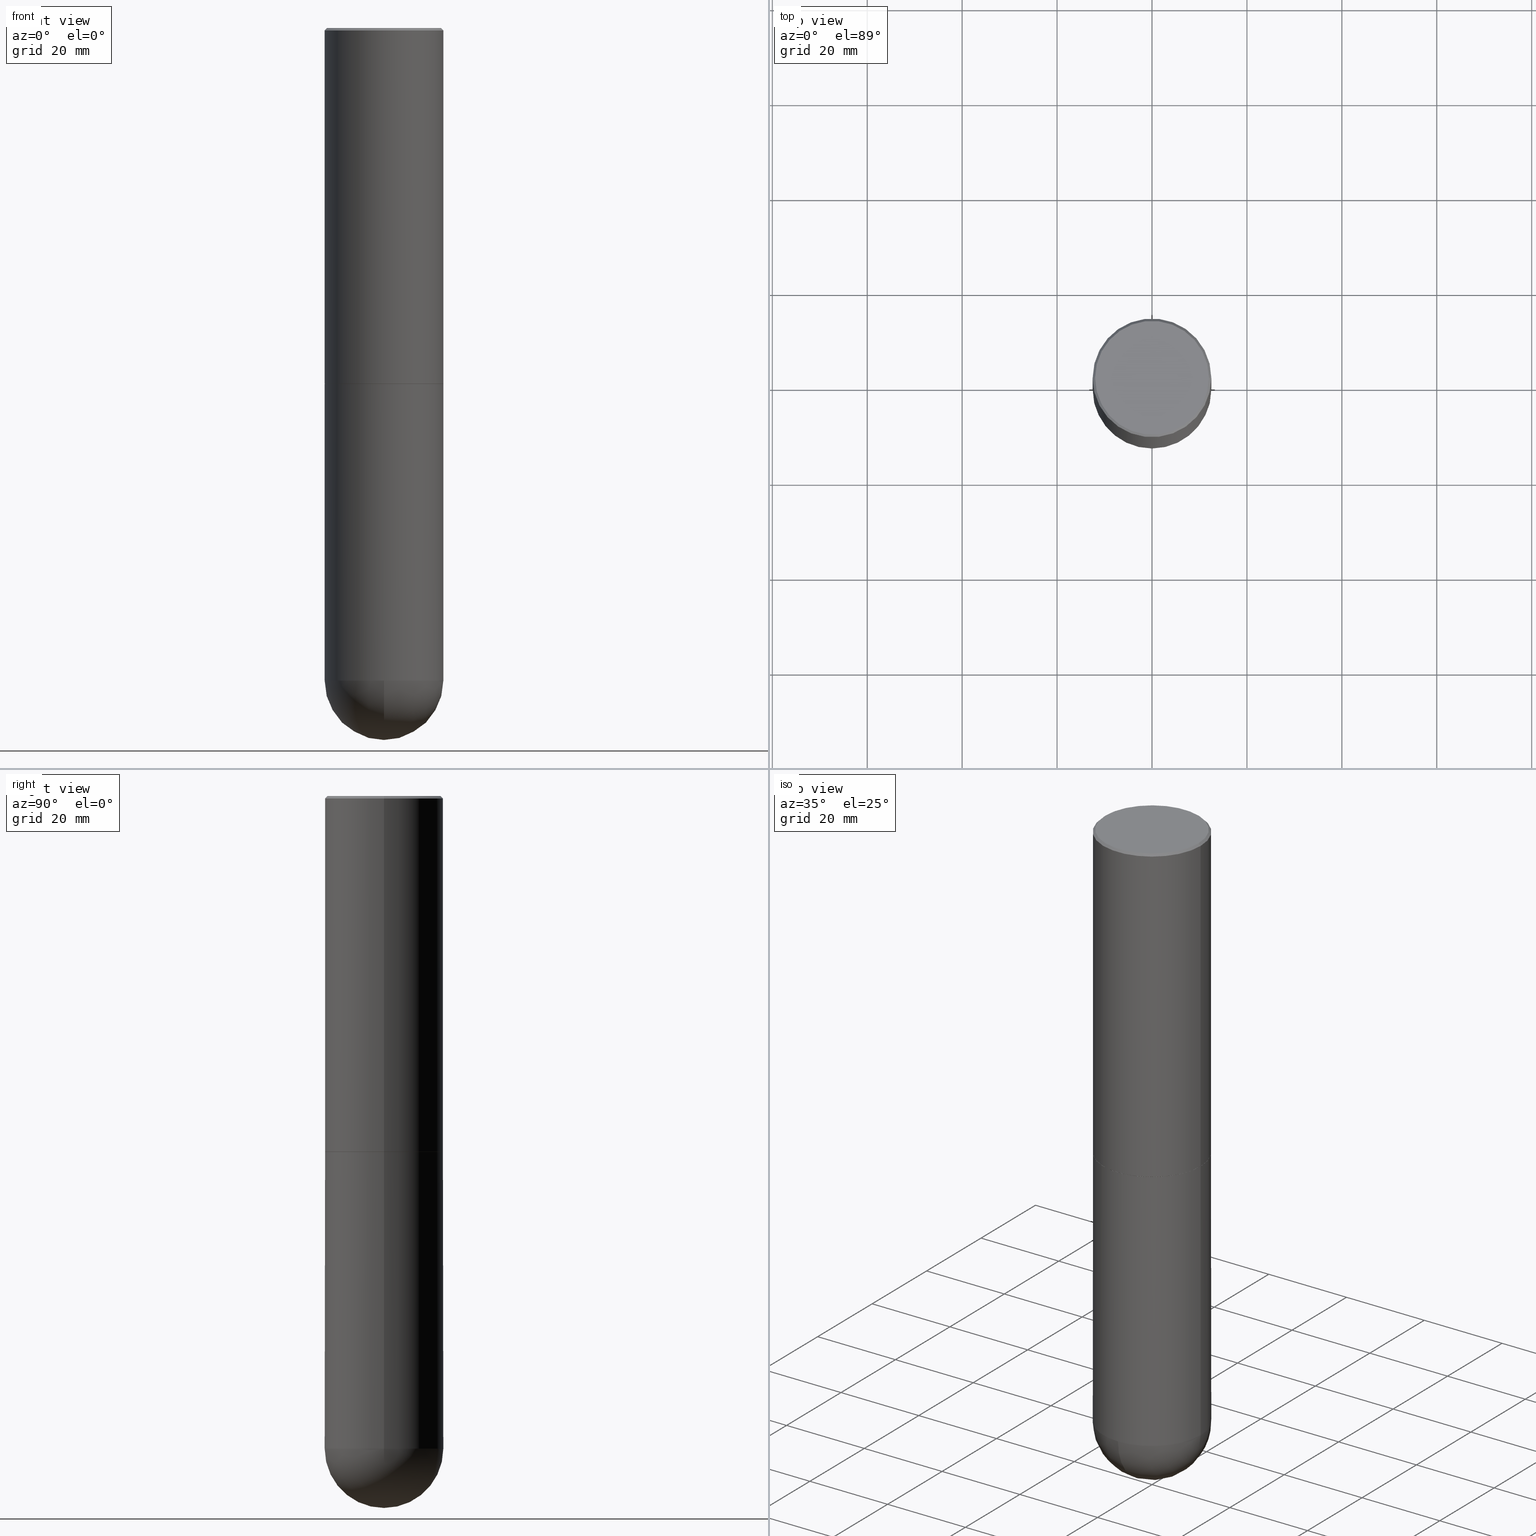
[diagram: canonical four-view strip — front | top / right | iso, engineering-drawing reading convention]
A machine part, canonical four-view strip (front | top / right | iso — engineering-drawing reading convention). The complete STEP part file that produces these views, byte-faithful:
ISO-10303-21;
HEADER;
FILE_DESCRIPTION (( 'STEP AP203' ),
    '1' );
FILE_NAME ('43596.STEP',
    '2024-04-10T11:44:38',
    ( '' ),
    ( '' ),
    'SwSTEP 2.0',
    'SolidWorks 2023',
    '' );
FILE_SCHEMA (( 'CONFIG_CONTROL_DESIGN' ));
ENDSEC;

DATA;
#1 = CARTESIAN_POINT ( 'NONE',  ( 4.890937612370299433E-31, -6.982962677686328587E-17, -0.02000000000000010797 ) ) ;
#2 = ORIENTED_EDGE ( 'NONE', *, *, #407, .T. ) ;
#3 = DIMENSIONAL_EXPONENTS ( 1.000000000000000000, 0.000000000000000000, 0.000000000000000000, 0.000000000000000000, 0.000000000000000000, 0.000000000000000000, 0.000000000000000000 ) ;
#4 = DIRECTION ( 'NONE',  ( 1.000000000000000000, -6.982962677686265922E-15, 4.876176775795935793E-29 ) ) ;
#5 = ORIENTED_EDGE ( 'NONE', *, *, #26, .T. ) ;
#6 = CARTESIAN_POINT ( 'NONE',  ( 0.4921500000000000319, -3.446223716380123138E-15, -0.02000000000000010797 ) ) ;
#7 = EDGE_CURVE ( 'NONE', #326, #382, #82, .T. ) ;
#8 = ORIENTED_EDGE ( 'NONE', *, *, #233, .F. ) ;
#9 = APPROVAL_ROLE ( '' ) ;
#10 = DIRECTION ( 'NONE',  ( -2.445468806185136877E-29, 3.491481338843145188E-15, 1.000000000000000000 ) ) ;
#11 = ORIENTED_EDGE ( 'NONE', *, *, #151, .T. ) ;
#12 = ADVANCED_FACE ( 'NONE', ( #30 ), #193, .T. ) ;
#13 = APPLICATION_PROTOCOL_DEFINITION ( 'international standard', 'config_control_design', 1994, #217 ) ;
#14 = FACE_OUTER_BOUND ( 'NONE', #109, .T. ) ;
#15 = ORIENTED_EDGE ( 'NONE', *, *, #375, .F. ) ;
#16 = PERSON_AND_ORGANIZATION_ROLE ( 'design_owner' ) ;
#17 = APPROVAL_STATUS ( 'not_yet_approved' ) ;
#18 = CYLINDRICAL_SURFACE ( 'NONE', #325, 0.4921500000000001984 ) ;
#19 = ORIENTED_EDGE ( 'NONE', *, *, #238, .T. ) ;
#20 = CARTESIAN_POINT ( 'NONE',  ( 1.290705878404842200E-28, -1.937479287376659043E-14, -5.413349999999999440 ) ) ;
#21 = PRODUCT ( '43596', '43596', '', ( #46 ) ) ;
#22 = AXIS2_PLACEMENT_3D ( 'NONE', #309, #222, #253 ) ;
#23 = DESIGN_CONTEXT ( 'detailed design', #396, 'design' ) ;
#24 = VERTEX_POINT ( 'NONE', #367 ) ;
#25 = ORIENTED_EDGE ( 'NONE', *, *, #330, .F. ) ;
#26 = EDGE_CURVE ( 'NONE', #45, #273, #52, .T. ) ;
#27 = DIRECTION ( 'NONE',  ( 1.000000000000000000, -6.982962677686265922E-15, 4.883557194083112340E-29 ) ) ;
#28 = CC_DESIGN_APPROVAL ( #218, ( #256 ) ) ;
#29 = CALENDAR_DATE ( 2024, 10, 4 ) ;
#30 = FACE_OUTER_BOUND ( 'NONE', #154, .T. ) ;
#31 = AXIS2_PLACEMENT_3D ( 'NONE', #36, #160, #101 ) ;
#32 = DIRECTION ( 'NONE',  ( 1.000000000000000000, -6.982962677686264344E-15, 0.000000000000000000 ) ) ;
#33 = EDGE_CURVE ( 'NONE', #307, #366, #163, .T. ) ;
#34 = EDGE_LOOP ( 'NONE', ( #25, #175, #236, #90 ) ) ;
#35 = LINE ( 'NONE', #234, #224 ) ;
#36 = CARTESIAN_POINT ( 'NONE',  ( 7.220735744022853640E-29, -1.030929694920215659E-14, -2.952700000000000546 ) ) ;
#37 = AXIS2_PLACEMENT_3D ( 'NONE', #226, #166, #370 ) ;
#38 = CARTESIAN_POINT ( 'NONE',  ( 3.436665081823426728E-15, 0.4921499999999808250, -5.413350000000002105 ) ) ;
#39 = CC_DESIGN_PERSON_AND_ORGANIZATION_ASSIGNMENT ( #189, #368, ( #378 ) ) ;
#40 = AXIS2_PLACEMENT_3D ( 'NONE', #284, #64, #84 ) ;
#41 = LINE ( 'NONE', #6, #168 ) ;
#42 = PERSON_AND_ORGANIZATION ( #177, #389 ) ;
#43 = MANIFOLD_SOLID_BREP ( 'Body-Move/Copy2[2]', #279 ) ;
#44 = EDGE_CURVE ( 'NONE', #307, #178, #60, .T. ) ;
#45 = VERTEX_POINT ( 'NONE', #255 ) ;
#46 = MECHANICAL_CONTEXT ( 'NONE', #217, 'mechanical' ) ;
#47 = AXIS2_PLACEMENT_3D ( 'NONE', #329, #156, #274 ) ;
#48 = ORIENTED_EDGE ( 'NONE', *, *, #192, .F. ) ;
#49 = SHAPE_DEFINITION_REPRESENTATION ( #387, #317 ) ;
#50 = ORIENTED_EDGE ( 'NONE', *, *, #33, .F. ) ;
#51 = DIRECTION ( 'NONE',  ( 1.000000000000000000, -6.982962677686264344E-15, 0.000000000000000000 ) ) ;
#52 = CIRCLE ( 'NONE', #98, 0.4921499999999999764 ) ;
#53 = ADVANCED_FACE ( 'NONE', ( #280 ), #286, .T. ) ;
#54 = ORIENTED_EDGE ( 'NONE', *, *, #375, .T. ) ;
#55 = ADVANCED_FACE ( 'NONE', ( #132 ), #155, .F. ) ;
#56 = ORIENTED_EDGE ( 'NONE', *, *, #7, .T. ) ;
#57 = DIRECTION ( 'NONE',  ( 1.000000000000000000, -6.982962677686266711E-15, 4.876176775795935232E-29 ) ) ;
#58 = DIRECTION ( 'NONE',  ( 6.982962677686266711E-15, 1.000000000000000000, -4.440675393541420887E-15 ) ) ;
#59 = CARTESIAN_POINT ( 'NONE',  ( -0.4921499999999999764, -1.110801765337101547E-14, -2.952700000000000102 ) ) ;
#60 = LINE ( 'NONE', #188, #287 ) ;
#61 = CLOSED_SHELL ( 'NONE', ( #134, #259, #53, #230, #341 ) ) ;
#62 = EDGE_CURVE ( 'NONE', #366, #45, #170, .T. ) ;
#63 = CARTESIAN_POINT ( 'NONE',  ( 7.220735744022853640E-29, -1.030929694920215659E-14, -2.952700000000000546 ) ) ;
#64 = DIRECTION ( 'NONE',  ( 2.438088387897960049E-29, -3.491481338843145188E-15, -1.000000000000000000 ) ) ;
#65 = APPROVAL_ROLE ( '' ) ;
#66 = ORIENTED_EDGE ( 'NONE', *, *, #103, .F. ) ;
#67 = FACE_OUTER_BOUND ( 'NONE', #357, .T. ) ;
#68 = LOCAL_TIME ( 7, 44, 38.00000000000000000, #135 ) ;
#69 = CONICAL_SURFACE ( 'NONE', #31, 0.4911499999999999755, 0.7853981633974482790 ) ;
#70 = FACE_OUTER_BOUND ( 'NONE', #199, .T. ) ;
#71 = CALENDAR_DATE ( 2024, 10, 4 ) ;
#72 = CARTESIAN_POINT ( 'NONE',  ( -0.4911499999999999755, -6.814167848168200725E-15, -2.952700000000000546 ) ) ;
#73 = DIRECTION ( 'NONE',  ( -2.445468806185136597E-29, 3.491481338843145583E-15, 1.000000000000000000 ) ) ;
#74 = ORIENTED_EDGE ( 'NONE', *, *, #252, .F. ) ;
#75 = AXIS2_PLACEMENT_3D ( 'NONE', #294, #73, #377 ) ;
#76 = ORIENTED_EDGE ( 'NONE', *, *, #123, .F. ) ;
#77 = APPROVAL_DATE_TIME ( #240, #218 ) ;
#78 = EDGE_CURVE ( 'NONE', #79, #246, #390, .T. ) ;
#79 = VERTEX_POINT ( 'NONE', #157 ) ;
#80 = CC_DESIGN_PERSON_AND_ORGANIZATION_ASSIGNMENT ( #112, #16, ( #21 ) ) ;
#81 = DIRECTION ( 'NONE',  ( 0.7071067811865474617, -2.468850131082256666E-15, 0.7071067811865474617 ) ) ;
#82 = CIRCLE ( 'NONE', #187, 0.4911499999999999755 ) ;
#83 = ORIENTED_EDGE ( 'NONE', *, *, #310, .T. ) ;
#84 = DIRECTION ( 'NONE',  ( -1.000000000000000000, 6.982962677686265922E-15, -4.876176775795935793E-29 ) ) ;
#85 = CARTESIAN_POINT ( 'NONE',  ( 0.000000000000000000, 0.000000000000000000, 0.000000000000000000 ) ) ;
#86 = DIRECTION ( 'NONE',  ( -1.000000000000000000, 6.982962677686265922E-15, 0.000000000000000000 ) ) ;
#87 = CARTESIAN_POINT ( 'NONE',  ( 7.220735744022853640E-29, -1.030929694920215659E-14, -2.952700000000000546 ) ) ;
#88 = CIRCLE ( 'NONE', #75, 0.4921500000000003094 ) ;
#89 = VERTEX_POINT ( 'NONE', #283 ) ;
#90 = ORIENTED_EDGE ( 'NONE', *, *, #282, .T. ) ;
#91 = CARTESIAN_POINT ( 'NONE',  ( 1.323817856196230713E-28, -1.890061050562653856E-14, -5.413349999999999440 ) ) ;
#92 = DIRECTION ( 'NONE',  ( -2.445468806185136877E-29, 3.491481338843145188E-15, 1.000000000000000000 ) ) ;
#93 = DIRECTION ( 'NONE',  ( -2.445468806185136877E-29, 3.491481338843145188E-15, 1.000000000000000000 ) ) ;
#94 = DIRECTION ( 'NONE',  ( 1.000000000000000000, -6.982962677686265922E-15, 4.876176775795935793E-29 ) ) ;
#95 =( NAMED_UNIT ( * ) PLANE_ANGLE_UNIT ( ) SI_UNIT ( $, .RADIAN. ) );
#96 = ORIENTED_EDGE ( 'NONE', *, *, #401, .F. ) ;
#97 = COORDINATED_UNIVERSAL_TIME_OFFSET ( 5, 0, .BEHIND. ) ;
#98 = AXIS2_PLACEMENT_3D ( 'NONE', #249, #393, #184 ) ;
#99 = DIRECTION ( 'NONE',  ( 2.445468806185136597E-29, -3.491481338843145583E-15, -1.000000000000000000 ) ) ;
#100 = DATE_AND_TIME ( #29, #68 ) ;
#101 = DIRECTION ( 'NONE',  ( 1.000000000000000000, -6.982962677686264344E-15, 0.000000000000000000 ) ) ;
#102 = PERSON_AND_ORGANIZATION ( #177, #389 ) ;
#103 = EDGE_CURVE ( 'NONE', #326, #198, #191, .T. ) ;
#104 = AXIS2_PLACEMENT_3D ( 'NONE', #356, #203, #353 ) ;
#105 = AXIS2_PLACEMENT_3D ( 'NONE', #87, #308, #32 ) ;
#106 = CARTESIAN_POINT ( 'NONE',  ( 1.290705878404842200E-28, -1.937479287376659043E-14, -5.413349999999999440 ) ) ;
#107 = ADVANCED_FACE ( 'NONE', ( #315 ), #69, .T. ) ;
#108 = CONICAL_SURFACE ( 'NONE', #105, 0.4911499999999999755, 0.7853981633974482790 ) ;
#109 = EDGE_LOOP ( 'NONE', ( #298, #397, #243, #365 ) ) ;
#110 = PRODUCT_DEFINITION ( 'UNKNOWN', '', #256, #23 ) ;
#111 = ORIENTED_EDGE ( 'NONE', *, *, #297, .F. ) ;
#112 = PERSON_AND_ORGANIZATION ( #177, #389 ) ;
#113 = AXIS2_PLACEMENT_3D ( 'NONE', #261, #136, #258 ) ;
#114 = AXIS2_PLACEMENT_3D ( 'NONE', #312, #121, #399 ) ;
#115 = ORIENTED_EDGE ( 'NONE', *, *, #44, .F. ) ;
#116 = DIRECTION ( 'NONE',  ( 2.445468806185136597E-29, -3.491481338843145583E-15, -1.000000000000000000 ) ) ;
#117 = APPROVAL_DATE_TIME ( #333, #137 ) ;
#118 = ORIENTED_EDGE ( 'NONE', *, *, #26, .F. ) ;
#119 = ADVANCED_FACE ( 'NONE', ( #228 ), #342, .F. ) ;
#120 = ORIENTED_EDGE ( 'NONE', *, *, #151, .F. ) ;
#121 = DIRECTION ( 'NONE',  ( -2.445468806185136597E-29, 3.491481338843145583E-15, 1.000000000000000000 ) ) ;
#122 = DIRECTION ( 'NONE',  ( -1.000000000000000000, 6.982962677686265922E-15, -4.876176775795935793E-29 ) ) ;
#123 = EDGE_CURVE ( 'NONE', #273, #307, #412, .T. ) ;
#124 = CC_DESIGN_SECURITY_CLASSIFICATION ( #378, ( #256 ) ) ;
#125 = CARTESIAN_POINT ( 'NONE',  ( -0.4921500000000001984, 3.496936074043334475E-15, -2.420853904668952630E-29 ) ) ;
#126 = ORIENTED_EDGE ( 'NONE', *, *, #318, .T. ) ;
#127 = LINE ( 'NONE', #398, #301 ) ;
#128 = CARTESIAN_POINT ( 'NONE',  ( -3.235939384439181382E-45, 4.620063828179386567E-31, 1.323238871931127589E-16 ) ) ;
#129 = ORIENTED_EDGE ( 'NONE', *, *, #238, .F. ) ;
#130 = CARTESIAN_POINT ( 'NONE',  ( 0.4911499999999999755, -1.373897906834776478E-14, -2.952700000000000546 ) ) ;
#131 = DIRECTION ( 'NONE',  ( -7.105427357601001070E-15, -1.000000000000000000, 0.000000000000000000 ) ) ;
#132 = FACE_OUTER_BOUND ( 'NONE', #352, .T. ) ;
#133 = CIRCLE ( 'NONE', #244, 0.4921500000000000874 ) ;
#134 = ADVANCED_FACE ( 'NONE', ( #335 ), #277, .T. ) ;
#135 = COORDINATED_UNIVERSAL_TIME_OFFSET ( 5, 0, .BEHIND. ) ;
#136 = DIRECTION ( 'NONE',  ( -2.445468806185136597E-29, 3.491481338843145583E-15, 1.000000000000000000 ) ) ;
#137 = APPROVAL ( #359, 'UNSPECIFIED' ) ;
#138 = CALENDAR_DATE ( 2024, 10, 4 ) ;
#139 = CARTESIAN_POINT ( 'NONE',  ( 7.218290275216666916E-29, -1.030580546786331359E-14, -2.951700000000000212 ) ) ;
#140 = DIRECTION ( 'NONE',  ( -1.000000000000000000, 6.982962677686265922E-15, 0.000000000000000000 ) ) ;
#141 = VERTEX_POINT ( 'NONE', #392 ) ;
#142 = EDGE_LOOP ( 'NONE', ( #264, #248 ) ) ;
#143 = FACE_OUTER_BOUND ( 'NONE', #34, .T. ) ;
#144 = CONICAL_SURFACE ( 'NONE', #346, 0.4921500000000000319, 0.7853981633974456145 ) ;
#145 = VERTEX_POINT ( 'NONE', #304 ) ;
#146 = CALENDAR_DATE ( 2024, 10, 4 ) ;
#147 = FACE_OUTER_BOUND ( 'NONE', #313, .T. ) ;
#148 = VECTOR ( 'NONE', #92, 39.37007874015748143 ) ;
#149 = ORIENTED_EDGE ( 'NONE', *, *, #241, .F. ) ;
#150 = CARTESIAN_POINT ( 'NONE',  ( 7.220735744022853640E-29, -1.030929694920215659E-14, -2.952700000000000546 ) ) ;
#151 = EDGE_CURVE ( 'NONE', #145, #273, #133, .T. ) ;
#152 = LOCAL_TIME ( 7, 44, 38.00000000000000000, #411 ) ;
#153 = AXIS2_PLACEMENT_3D ( 'NONE', #194, #99, #140 ) ;
#154 = EDGE_LOOP ( 'NONE', ( #8, #54, #126, #355 ) ) ;
#155 = PLANE ( 'NONE',  #293 ) ;
#156 = DIRECTION ( 'NONE',  ( -2.445468806185136597E-29, 3.491481338843145583E-15, 1.000000000000000000 ) ) ;
#157 = CARTESIAN_POINT ( 'NONE',  ( 0.4721499999999999031, -3.342703923013974974E-15, 1.323238871931359563E-16 ) ) ;
#158 = CARTESIAN_POINT ( 'NONE',  ( -0.4921500000000003094, -1.690881473276752982E-15, -2.951700000000000212 ) ) ;
#159 = APPROVAL_DATE_TIME ( #231, #269 ) ;
#160 = DIRECTION ( 'NONE',  ( -2.445468806185136597E-29, 3.491481338843145583E-15, 1.000000000000000000 ) ) ;
#161 = DIRECTION ( 'NONE',  ( -2.445468806185136597E-29, 3.491481338843145583E-15, 1.000000000000000000 ) ) ;
#162 = DATE_TIME_ROLE ( 'classification_date' ) ;
#163 = CIRCLE ( 'NONE', #22, 0.4921499999999999764 ) ;
#164 = PLANE ( 'NONE',  #40 ) ;
#165 = DIRECTION ( 'NONE',  ( -2.445468806185136877E-29, 3.491481338843145188E-15, 1.000000000000000000 ) ) ;
#166 = DIRECTION ( 'NONE',  ( -2.445468806185136597E-29, 3.491481338843145583E-15, 1.000000000000000000 ) ) ;
#167 = EDGE_CURVE ( 'NONE', #246, #79, #173, .T. ) ;
#168 = VECTOR ( 'NONE', #347, 39.37007874015748854 ) ;
#169 = DIRECTION ( 'NONE',  ( -0.7071067811865454633, 2.468850131082235761E-15, -0.7071067811865493491 ) ) ;
#170 = CIRCLE ( 'NONE', #114, 0.4921499999999999764 ) ;
#171 = DIRECTION ( 'NONE',  ( -2.445468806185136597E-29, 3.491481338843145583E-15, 1.000000000000000000 ) ) ;
#172 = PERSON_AND_ORGANIZATION_ROLE ( 'creator' ) ;
#173 = CIRCLE ( 'NONE', #47, 0.4721499999999999031 ) ;
#174 = SECURITY_CLASSIFICATION_LEVEL ( 'unclassified' ) ;
#175 = ORIENTED_EDGE ( 'NONE', *, *, #167, .F. ) ;
#176 = COORDINATED_UNIVERSAL_TIME_OFFSET ( 5, 0, .BEHIND. ) ;
#177 = PERSON ( 'UNSPECIFIED', 'UNSPECIFIED', 'UNSPECIFIED', ('UNSPECIFIED'), ('UNSPECIFIED'), ('UNSPECIFIED') ) ;
#178 = VERTEX_POINT ( 'NONE', #59 ) ;
#179 = LINE ( 'NONE', #306, #223 ) ;
#180 = AXIS2_PLACEMENT_3D ( 'NONE', #402, #278, #58 ) ;
#181 = DIRECTION ( 'NONE',  ( 2.438088387897960049E-29, -3.491481338843145188E-15, -1.000000000000000000 ) ) ;
#182 = MANIFOLD_SOLID_BREP ( 'Body-Move/Copy2[1]', #61 ) ;
#183 = ADVANCED_FACE ( 'NONE', ( #147 ), #108, .T. ) ;
#184 = DIRECTION ( 'NONE',  ( 1.000000000000000000, -6.982962677686265922E-15, 0.000000000000000000 ) ) ;
#185 = CARTESIAN_POINT ( 'NONE',  ( 0.000000000000000000, 0.000000000000000000, 0.000000000000000000 ) ) ;
#186 = DIRECTION ( 'NONE',  ( -2.438088387897960049E-29, 3.491481338843145188E-15, 1.000000000000000000 ) ) ;
#187 = AXIS2_PLACEMENT_3D ( 'NONE', #150, #220, #216 ) ;
#188 = CARTESIAN_POINT ( 'NONE',  ( -0.4921499999999999764, 3.496936074043332897E-15, -2.420853904668951509E-29 ) ) ;
#189 = PERSON_AND_ORGANIZATION ( #177, #389 ) ;
#190 = CARTESIAN_POINT ( 'NONE',  ( 1.290705878404842200E-28, -1.937479287376659043E-14, -5.413349999999999440 ) ) ;
#191 = LINE ( 'NONE', #369, #237 ) ;
#192 = EDGE_CURVE ( 'NONE', #45, #141, #35, .T. ) ;
#193 = CYLINDRICAL_SURFACE ( 'NONE', #395, 0.4921500000000001984 ) ;
#194 = CARTESIAN_POINT ( 'NONE',  ( 4.890937612370299433E-31, -6.982962677686328587E-17, -0.02000000000000010797 ) ) ;
#195 = CIRCLE ( 'NONE', #113, 0.4921500000000000319 ) ;
#196 = DIRECTION ( 'NONE',  ( -1.000000000000000000, 6.982962677686266711E-15, -4.883557194083112901E-29 ) ) ;
#197 = AXIS2_PLACEMENT_3D ( 'NONE', #221, #181, #122 ) ;
#198 = VERTEX_POINT ( 'NONE', #158 ) ;
#199 = EDGE_LOOP ( 'NONE', ( #120, #19, #50, #76 ) ) ;
#200 = AXIS2_PLACEMENT_3D ( 'NONE', #190, #219, #131 ) ;
#201 = EDGE_CURVE ( 'NONE', #141, #178, #213, .T. ) ;
#202 = ORIENTED_EDGE ( 'NONE', *, *, #310, .F. ) ;
#203 = DIRECTION ( 'NONE',  ( 0.000000000000000000, 0.000000000000000000, 1.000000000000000000 ) ) ;
#204 = PERSON_AND_ORGANIZATION_ROLE ( 'design_supplier' ) ;
#205 =( GEOMETRIC_REPRESENTATION_CONTEXT ( 3 ) GLOBAL_UNCERTAINTY_ASSIGNED_CONTEXT ( ( #305 ) ) GLOBAL_UNIT_ASSIGNED_CONTEXT ( ( #408, #95, #299 ) ) REPRESENTATION_CONTEXT ( 'NONE', 'WORKASPACE' ) );
#206 = ORIENTED_EDGE ( 'NONE', *, *, #330, .T. ) ;
#207 = LINE ( 'NONE', #125, #148 ) ;
#208 = CARTESIAN_POINT ( 'NONE',  ( 7.220735744022853640E-29, -1.030929694920215659E-14, -2.952700000000000546 ) ) ;
#209 = DIRECTION ( 'NONE',  ( -2.445468806185136597E-29, 3.491481338843145583E-15, 1.000000000000000000 ) ) ;
#210 = CIRCLE ( 'NONE', #37, 0.4921499999999999764 ) ;
#211 = DIRECTION ( 'NONE',  ( -2.445468806185136597E-29, 3.491481338843145583E-15, 1.000000000000000000 ) ) ;
#212 = CALENDAR_DATE ( 2024, 10, 4 ) ;
#213 = CIRCLE ( 'NONE', #372, 0.4921499999999999764 ) ;
#214 = ADVANCED_FACE ( 'NONE', ( #67 ), #321, .T. ) ;
#215 = CARTESIAN_POINT ( 'NONE',  ( -3.496936074043201946E-15, -0.4921500000000192387, -5.413349999999997664 ) ) ;
#216 = DIRECTION ( 'NONE',  ( 1.000000000000000000, -6.982962677686264344E-15, 0.000000000000000000 ) ) ;
#217 = APPLICATION_CONTEXT ( 'configuration controlled 3d designs of mechanical parts and assemblies' ) ;
#218 = APPROVAL ( #17, 'UNSPECIFIED' ) ;
#219 = DIRECTION ( 'NONE',  ( -1.000000000000000000, 7.105427357601001070E-15, -4.926315508542082329E-29 ) ) ;
#220 = DIRECTION ( 'NONE',  ( -2.445468806185136597E-29, 3.491481338843145583E-15, 1.000000000000000000 ) ) ;
#221 = CARTESIAN_POINT ( 'NONE',  ( 3.297005828269569575E-15, 0.4721499999999999031, -1.582340970538234485E-15 ) ) ;
#222 = DIRECTION ( 'NONE',  ( -2.445468806185136597E-29, 3.491481338843145583E-15, 1.000000000000000000 ) ) ;
#223 = VECTOR ( 'NONE', #10, 39.37007874015748143 ) ;
#224 = VECTOR ( 'NONE', #165, 39.37007874015748143 ) ;
#225 = EDGE_LOOP ( 'NONE', ( #115, #334, #263, #296, #96 ) ) ;
#226 = CARTESIAN_POINT ( 'NONE',  ( 7.220735744022852519E-29, -1.030929694920215502E-14, -2.952700000000000102 ) ) ;
#227 = PERSON_AND_ORGANIZATION ( #177, #389 ) ;
#228 = FACE_OUTER_BOUND ( 'NONE', #247, .T. ) ;
#229 = CARTESIAN_POINT ( 'NONE',  ( 7.220735744022852519E-29, -1.030929694920215502E-14, -2.952700000000000102 ) ) ;
#230 = ADVANCED_FACE ( 'NONE', ( #381 ), #164, .F. ) ;
#231 = DATE_AND_TIME ( #71, #152 ) ;
#232 = LOCAL_TIME ( 7, 44, 38.00000000000000000, #176 ) ;
#233 = EDGE_CURVE ( 'NONE', #198, #89, #207, .T. ) ;
#234 = CARTESIAN_POINT ( 'NONE',  ( 0.4921499999999999764, -3.436665081823295777E-15, 2.399810400207969603E-29 ) ) ;
#235 = SPHERICAL_SURFACE ( 'NONE', #351, 0.4921500000000000874 ) ;
#236 = ORIENTED_EDGE ( 'NONE', *, *, #241, .T. ) ;
#237 = VECTOR ( 'NONE', #257, 39.37007874015748854 ) ;
#238 = EDGE_CURVE ( 'NONE', #145, #366, #266, .T. ) ;
#239 = EDGE_LOOP ( 'NONE', ( #66, #56, #275, #15 ) ) ;
#240 = DATE_AND_TIME ( #146, #232 ) ;
#241 = EDGE_CURVE ( 'NONE', #246, #89, #127, .T. ) ;
#242 = DIRECTION ( 'NONE',  ( 1.000000000000000000, -6.982962677686265922E-15, 0.000000000000000000 ) ) ;
#243 = ORIENTED_EDGE ( 'NONE', *, *, #407, .F. ) ;
#244 = AXIS2_PLACEMENT_3D ( 'NONE', #20, #27, #358 ) ;
#245 = ORIENTED_EDGE ( 'NONE', *, *, #167, .T. ) ;
#246 = VERTEX_POINT ( 'NONE', #344 ) ;
#247 = EDGE_LOOP ( 'NONE', ( #245, #322 ) ) ;
#248 = ORIENTED_EDGE ( 'NONE', *, *, #401, .T. ) ;
#249 = CARTESIAN_POINT ( 'NONE',  ( 1.323817856196230713E-28, -1.890061050562653856E-14, -5.413349999999999440 ) ) ;
#250 = APPROVAL_PERSON_ORGANIZATION ( #270, #218, #9 ) ;
#251 = DIRECTION ( 'NONE',  ( 1.000000000000000000, -6.982962677686265922E-15, 0.000000000000000000 ) ) ;
#252 = EDGE_CURVE ( 'NONE', #24, #198, #88, .T. ) ;
#253 = DIRECTION ( 'NONE',  ( 1.000000000000000000, -6.982962677686265922E-15, 0.000000000000000000 ) ) ;
#254 = CARTESIAN_POINT ( 'NONE',  ( 0.000000000000000000, 0.000000000000000000, 0.000000000000000000 ) ) ;
#255 = CARTESIAN_POINT ( 'NONE',  ( 0.4921499999999999764, -1.804161880923764651E-14, -5.413349999999999440 ) ) ;
#256 = PRODUCT_DEFINITION_FORMATION_WITH_SPECIFIED_SOURCE ( 'ANY', '', #21, .NOT_KNOWN. ) ;
#257 = DIRECTION ( 'NONE',  ( -0.7071067811865474617, 7.493145998870352582E-15, 0.7071067811865474617 ) ) ;
#258 = DIRECTION ( 'NONE',  ( 1.000000000000000000, -6.982962677686265922E-15, 0.000000000000000000 ) ) ;
#259 = ADVANCED_FACE ( 'NONE', ( #70 ), #235, .T. ) ;
#260 = DATE_AND_TIME ( #138, #394 ) ;
#261 = CARTESIAN_POINT ( 'NONE',  ( 4.890937612370299433E-31, -6.982962677686328587E-17, -0.02000000000000010797 ) ) ;
#262 = FACE_OUTER_BOUND ( 'NONE', #225, .T. ) ;
#263 = ORIENTED_EDGE ( 'NONE', *, *, #62, .T. ) ;
#264 = ORIENTED_EDGE ( 'NONE', *, *, #201, .T. ) ;
#265 = EDGE_LOOP ( 'NONE', ( #129, #11, #118, #336 ) ) ;
#266 = CIRCLE ( 'NONE', #200, 0.4921500000000000874 ) ;
#267 = PERSON_AND_ORGANIZATION ( #177, #389 ) ;
#268 = LINE ( 'NONE', #386, #300 ) ;
#269 = APPROVAL ( #404, 'UNSPECIFIED' ) ;
#270 = PERSON_AND_ORGANIZATION ( #177, #389 ) ;
#271 = LOCAL_TIME ( 7, 44, 38.00000000000000000, #97 ) ;
#272 = ORIENTED_EDGE ( 'NONE', *, *, #78, .F. ) ;
#273 = VERTEX_POINT ( 'NONE', #38 ) ;
#274 = DIRECTION ( 'NONE',  ( 1.000000000000000000, -6.982962677686266711E-15, 4.875605319575679544E-29 ) ) ;
#275 = ORIENTED_EDGE ( 'NONE', *, *, #297, .T. ) ;
#276 = DIRECTION ( 'NONE',  ( 1.000000000000000000, -6.982962677686265922E-15, 4.876176775795935793E-29 ) ) ;
#277 = CYLINDRICAL_SURFACE ( 'NONE', #288, 0.4921499999999999764 ) ;
#278 = DIRECTION ( 'NONE',  ( -1.000000000000000000, 6.982962677686266711E-15, -4.883557194083112901E-29 ) ) ;
#279 = CLOSED_SHELL ( 'NONE', ( #183, #302, #214, #348, #12, #107, #55, #119 ) ) ;
#280 = FACE_OUTER_BOUND ( 'NONE', #265, .T. ) ;
#281 = APPROVAL_ROLE ( '' ) ;
#282 = EDGE_CURVE ( 'NONE', #89, #303, #363, .T. ) ;
#283 = CARTESIAN_POINT ( 'NONE',  ( -0.4921500000000000319, 3.366835455046432873E-15, -0.02000000000000010797 ) ) ;
#284 = CARTESIAN_POINT ( 'NONE',  ( 3.436665081823367957E-15, 0.4921499999999896513, -2.952700000000001435 ) ) ;
#285 = PERSON_AND_ORGANIZATION_ROLE ( 'creator' ) ;
#286 = SPHERICAL_SURFACE ( 'NONE', #180, 0.4921500000000000874 ) ;
#287 = VECTOR ( 'NONE', #93, 39.37007874015748143 ) ;
#288 = AXIS2_PLACEMENT_3D ( 'NONE', #185, #338, #94 ) ;
#289 = DIRECTION ( 'NONE',  ( 6.982962677686266711E-15, 1.000000000000000000, -4.440675393541420887E-15 ) ) ;
#290 = CC_DESIGN_DATE_AND_TIME_ASSIGNMENT ( #260, #374, ( #110 ) ) ;
#291 = DIRECTION ( 'NONE',  ( -2.445468806185136597E-29, 3.491481338843145583E-15, 1.000000000000000000 ) ) ;
#292 = AXIS2_PLACEMENT_3D ( 'NONE', #139, #161, #406 ) ;
#293 = AXIS2_PLACEMENT_3D ( 'NONE', #63, #186, #276 ) ;
#294 = CARTESIAN_POINT ( 'NONE',  ( 7.218290275216666916E-29, -1.030580546786331359E-14, -2.951700000000000212 ) ) ;
#295 = DIRECTION ( 'NONE',  ( -2.445468806185136597E-29, 3.491481338843145583E-15, 1.000000000000000000 ) ) ;
#296 = ORIENTED_EDGE ( 'NONE', *, *, #192, .T. ) ;
#297 = EDGE_CURVE ( 'NONE', #382, #24, #268, .T. ) ;
#298 = ORIENTED_EDGE ( 'NONE', *, *, #252, .T. ) ;
#299 =( NAMED_UNIT ( * ) SI_UNIT ( $, .STERADIAN. ) SOLID_ANGLE_UNIT ( ) );
#300 = VECTOR ( 'NONE', #81, 39.37007874015748854 ) ;
#301 = VECTOR ( 'NONE', #169, 39.37007874015748854 ) ;
#302 = ADVANCED_FACE ( 'NONE', ( #14 ), #18, .T. ) ;
#303 = VERTEX_POINT ( 'NONE', #376 ) ;
#304 = CARTESIAN_POINT ( 'NONE',  ( 1.413163976147341948E-28, -2.106298991856822883E-14, -5.905499999999999972 ) ) ;
#305 = UNCERTAINTY_MEASURE_WITH_UNIT (LENGTH_MEASURE( 1.000000000000000082E-05 ), #408, 'distance_accuracy_value', 'NONE');
#306 = CARTESIAN_POINT ( 'NONE',  ( 0.4921500000000001984, -3.436665081823297354E-15, 2.399810400207970443E-29 ) ) ;
#307 = VERTEX_POINT ( 'NONE', #388 ) ;
#308 = DIRECTION ( 'NONE',  ( -2.445468806185136597E-29, 3.491481338843145583E-15, 1.000000000000000000 ) ) ;
#309 = CARTESIAN_POINT ( 'NONE',  ( 1.323817856196230713E-28, -1.890061050562653856E-14, -5.413349999999999440 ) ) ;
#310 = EDGE_CURVE ( 'NONE', #382, #326, #316, .T. ) ;
#311 = ORIENTED_EDGE ( 'NONE', *, *, #201, .F. ) ;
#312 = CARTESIAN_POINT ( 'NONE',  ( 1.323817856196230713E-28, -1.890061050562653856E-14, -5.413349999999999440 ) ) ;
#313 = EDGE_LOOP ( 'NONE', ( #83, #391, #74, #111 ) ) ;
#314 = DIRECTION ( 'NONE',  ( 1.000000000000000000, -6.982962677686266711E-15, 4.875605319575679544E-29 ) ) ;
#315 = FACE_OUTER_BOUND ( 'NONE', #239, .T. ) ;
#316 = CIRCLE ( 'NONE', #371, 0.4911499999999999755 ) ;
#317 = ADVANCED_BREP_SHAPE_REPRESENTATION ( '43596', ( #182, #43, #104 ), #205 ) ;
#318 = EDGE_CURVE ( 'NONE', #24, #303, #179, .T. ) ;
#319 = CC_DESIGN_APPROVAL ( #269, ( #110 ) ) ;
#320 = CARTESIAN_POINT ( 'NONE',  ( 0.000000000000000000, 0.000000000000000000, 0.000000000000000000 ) ) ;
#321 = CONICAL_SURFACE ( 'NONE', #153, 0.4921500000000000319, 0.7853981633974456145 ) ;
#322 = ORIENTED_EDGE ( 'NONE', *, *, #78, .T. ) ;
#323 = ORIENTED_EDGE ( 'NONE', *, *, #44, .T. ) ;
#324 = CC_DESIGN_PERSON_AND_ORGANIZATION_ASSIGNMENT ( #42, #172, ( #256 ) ) ;
#325 = AXIS2_PLACEMENT_3D ( 'NONE', #85, #209, #328 ) ;
#326 = VERTEX_POINT ( 'NONE', #72 ) ;
#327 = DIRECTION ( 'NONE',  ( -2.445468806185136597E-29, 3.491481338843145583E-15, 1.000000000000000000 ) ) ;
#328 = DIRECTION ( 'NONE',  ( 1.000000000000000000, -6.982962677686266711E-15, 4.876176775795935232E-29 ) ) ;
#329 = CARTESIAN_POINT ( 'NONE',  ( -3.235939384439181382E-45, 4.620063828179386567E-31, 1.323238871931127589E-16 ) ) ;
#330 = EDGE_CURVE ( 'NONE', #79, #303, #41, .T. ) ;
#331 = APPROVAL_PERSON_ORGANIZATION ( #405, #137, #281 ) ;
#332 = ORIENTED_EDGE ( 'NONE', *, *, #7, .F. ) ;
#333 = DATE_AND_TIME ( #212, #271 ) ;
#334 = ORIENTED_EDGE ( 'NONE', *, *, #33, .T. ) ;
#335 = FACE_OUTER_BOUND ( 'NONE', #361, .T. ) ;
#336 = ORIENTED_EDGE ( 'NONE', *, *, #62, .F. ) ;
#337 = PRODUCT_RELATED_PRODUCT_CATEGORY ( 'detail', '', ( #21 ) ) ;
#338 = DIRECTION ( 'NONE',  ( -2.445468806185136597E-29, 3.491481338843145583E-15, 1.000000000000000000 ) ) ;
#339 = DIRECTION ( 'NONE',  ( -2.445468806185136597E-29, 3.491481338843145583E-15, 1.000000000000000000 ) ) ;
#340 = ORIENTED_EDGE ( 'NONE', *, *, #123, .T. ) ;
#341 = ADVANCED_FACE ( 'NONE', ( #262 ), #349, .T. ) ;
#342 = PLANE ( 'NONE',  #197 ) ;
#343 = DIRECTION ( 'NONE',  ( 1.000000000000000000, -6.982962677686265922E-15, 0.000000000000000000 ) ) ;
#344 = CARTESIAN_POINT ( 'NONE',  ( -0.4721499999999999031, 3.331920641658001618E-15, 1.323238871930895614E-16 ) ) ;
#345 = LENGTH_MEASURE_WITH_UNIT ( LENGTH_MEASURE( 0.02539999999999999897 ), #373 );
#346 = AXIS2_PLACEMENT_3D ( 'NONE', #384, #116, #86 ) ;
#347 = DIRECTION ( 'NONE',  ( 0.7071067811865454633, -7.319954787623246579E-15, -0.7071067811865493491 ) ) ;
#348 = ADVANCED_FACE ( 'NONE', ( #143 ), #144, .T. ) ;
#349 = CYLINDRICAL_SURFACE ( 'NONE', #383, 0.4921499999999999764 ) ;
#350 = CC_DESIGN_APPROVAL ( #137, ( #378 ) ) ;
#351 = AXIS2_PLACEMENT_3D ( 'NONE', #106, #196, #289 ) ;
#352 = EDGE_LOOP ( 'NONE', ( #202, #332 ) ) ;
#353 = DIRECTION ( 'NONE',  ( 1.000000000000000000, 0.000000000000000000, 0.000000000000000000 ) ) ;
#354 = CC_DESIGN_PERSON_AND_ORGANIZATION_ASSIGNMENT ( #102, #285, ( #110 ) ) ;
#355 = ORIENTED_EDGE ( 'NONE', *, *, #282, .F. ) ;
#356 = CARTESIAN_POINT ( 'NONE',  ( 0.000000000000000000, 0.000000000000000000, 0.000000000000000000 ) ) ;
#357 = EDGE_LOOP ( 'NONE', ( #272, #206, #2, #149 ) ) ;
#358 = DIRECTION ( 'NONE',  ( 6.982962677686265922E-15, 1.000000000000000000, 0.000000000000000000 ) ) ;
#359 = APPROVAL_STATUS ( 'not_yet_approved' ) ;
#360 = CIRCLE ( 'NONE', #292, 0.4921500000000003094 ) ;
#361 = EDGE_LOOP ( 'NONE', ( #340, #323, #311, #48, #5 ) ) ;
#362 = DIRECTION ( 'NONE',  ( -2.445468806185136597E-29, 3.491481338843145583E-15, 1.000000000000000000 ) ) ;
#363 = CIRCLE ( 'NONE', #403, 0.4921500000000000319 ) ;
#364 = CC_DESIGN_PERSON_AND_ORGANIZATION_ASSIGNMENT ( #267, #204, ( #256 ) ) ;
#365 = ORIENTED_EDGE ( 'NONE', *, *, #318, .F. ) ;
#366 = VERTEX_POINT ( 'NONE', #215 ) ;
#367 = CARTESIAN_POINT ( 'NONE',  ( 0.4921500000000003094, -1.374247054968661252E-14, -2.951700000000000212 ) ) ;
#368 = PERSON_AND_ORGANIZATION_ROLE ( 'classification_officer' ) ;
#369 = CARTESIAN_POINT ( 'NONE',  ( -0.4911499999999999755, -6.819466302516424705E-15, -2.952700000000000546 ) ) ;
#370 = DIRECTION ( 'NONE',  ( 1.000000000000000000, -6.982962677686265922E-15, 0.000000000000000000 ) ) ;
#371 = AXIS2_PLACEMENT_3D ( 'NONE', #208, #327, #51 ) ;
#372 = AXIS2_PLACEMENT_3D ( 'NONE', #229, #291, #343 ) ;
#373 =( LENGTH_UNIT ( ) NAMED_UNIT ( * ) SI_UNIT ( $, .METRE. ) );
#374 = DATE_TIME_ROLE ( 'creation_date' ) ;
#375 = EDGE_CURVE ( 'NONE', #198, #24, #360, .T. ) ;
#376 = CARTESIAN_POINT ( 'NONE',  ( 0.4921500000000000319, -3.446223716380123138E-15, -0.02000000000000010797 ) ) ;
#377 = DIRECTION ( 'NONE',  ( 1.000000000000000000, -6.982962677686265922E-15, 0.000000000000000000 ) ) ;
#378 = SECURITY_CLASSIFICATION ( '', '', #174 ) ;
#379 = APPLICATION_PROTOCOL_DEFINITION ( 'international standard', 'config_control_design', 1994, #396 ) ;
#380 = AXIS2_PLACEMENT_3D ( 'NONE', #91, #211, #251 ) ;
#381 = FACE_OUTER_BOUND ( 'NONE', #142, .T. ) ;
#382 = VERTEX_POINT ( 'NONE', #130 ) ;
#383 = AXIS2_PLACEMENT_3D ( 'NONE', #320, #295, #4 ) ;
#384 = CARTESIAN_POINT ( 'NONE',  ( 4.890937612370299433E-31, -6.982962677686328587E-17, -0.02000000000000010797 ) ) ;
#385 = AXIS2_PLACEMENT_3D ( 'NONE', #128, #362, #314 ) ;
#386 = CARTESIAN_POINT ( 'NONE',  ( 0.4911499999999999755, -1.373897906834776478E-14, -2.952700000000000546 ) ) ;
#387 = PRODUCT_DEFINITION_SHAPE ( 'NONE', 'NONE',  #110 ) ;
#388 = CARTESIAN_POINT ( 'NONE',  ( -0.4921499999999999764, -1.110801765337101862E-14, -5.413349999999999440 ) ) ;
#389 = ORGANIZATION ( 'UNSPECIFIED', 'UNSPECIFIED', '' ) ;
#390 = CIRCLE ( 'NONE', #385, 0.4721499999999999031 ) ;
#391 = ORIENTED_EDGE ( 'NONE', *, *, #103, .T. ) ;
#392 = CARTESIAN_POINT ( 'NONE',  ( 0.4921499999999999764, -1.374596203102545079E-14, -2.952700000000000102 ) ) ;
#393 = DIRECTION ( 'NONE',  ( -2.445468806185136597E-29, 3.491481338843145583E-15, 1.000000000000000000 ) ) ;
#394 = LOCAL_TIME ( 7, 44, 38.00000000000000000, #400 ) ;
#395 = AXIS2_PLACEMENT_3D ( 'NONE', #254, #339, #57 ) ;
#396 = APPLICATION_CONTEXT ( 'configuration controlled 3d designs of mechanical parts and assemblies' ) ;
#397 = ORIENTED_EDGE ( 'NONE', *, *, #233, .T. ) ;
#398 = CARTESIAN_POINT ( 'NONE',  ( -0.4921500000000000319, 3.366835455046432873E-15, -0.02000000000000010797 ) ) ;
#399 = DIRECTION ( 'NONE',  ( 1.000000000000000000, -6.982962677686265922E-15, 0.000000000000000000 ) ) ;
#400 = COORDINATED_UNIVERSAL_TIME_OFFSET ( 5, 0, .BEHIND. ) ;
#401 = EDGE_CURVE ( 'NONE', #178, #141, #210, .T. ) ;
#402 = CARTESIAN_POINT ( 'NONE',  ( 1.290705878404842200E-28, -1.937479287376659043E-14, -5.413349999999999440 ) ) ;
#403 = AXIS2_PLACEMENT_3D ( 'NONE', #1, #171, #242 ) ;
#404 = APPROVAL_STATUS ( 'not_yet_approved' ) ;
#405 = PERSON_AND_ORGANIZATION ( #177, #389 ) ;
#406 = DIRECTION ( 'NONE',  ( 1.000000000000000000, -6.982962677686265922E-15, 0.000000000000000000 ) ) ;
#407 = EDGE_CURVE ( 'NONE', #303, #89, #195, .T. ) ;
#408 =( CONVERSION_BASED_UNIT ( 'INCH', #345 ) LENGTH_UNIT ( ) NAMED_UNIT ( #3 ) );
#409 = CC_DESIGN_DATE_AND_TIME_ASSIGNMENT ( #100, #162, ( #378 ) ) ;
#410 = APPROVAL_PERSON_ORGANIZATION ( #227, #269, #65 ) ;
#411 = COORDINATED_UNIVERSAL_TIME_OFFSET ( 5, 0, .BEHIND. ) ;
#412 = CIRCLE ( 'NONE', #380, 0.4921499999999999764 ) ;
ENDSEC;
END-ISO-10303-21;
